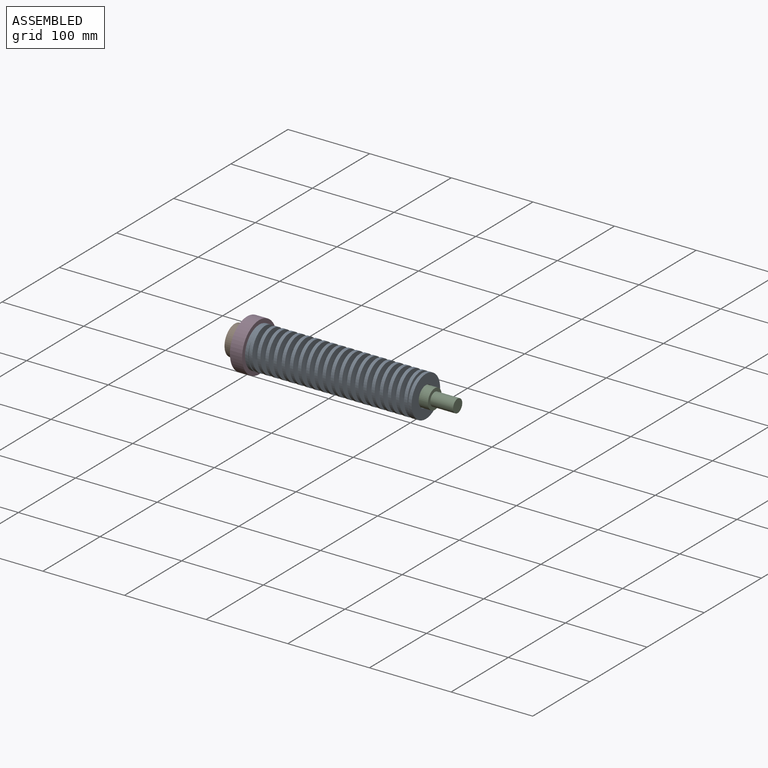
[diagram: assembled view]
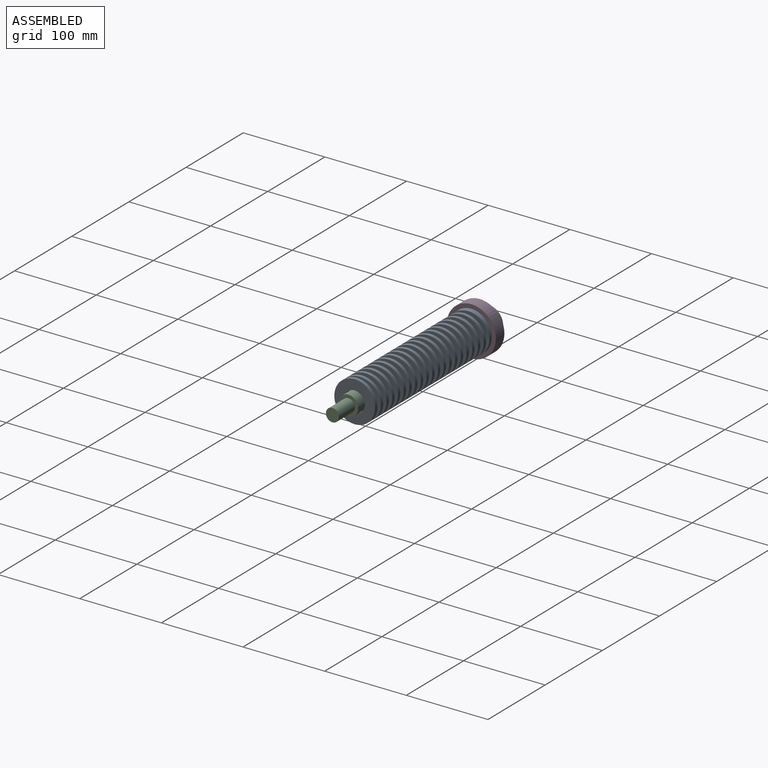
[diagram: assembled view, second angle]
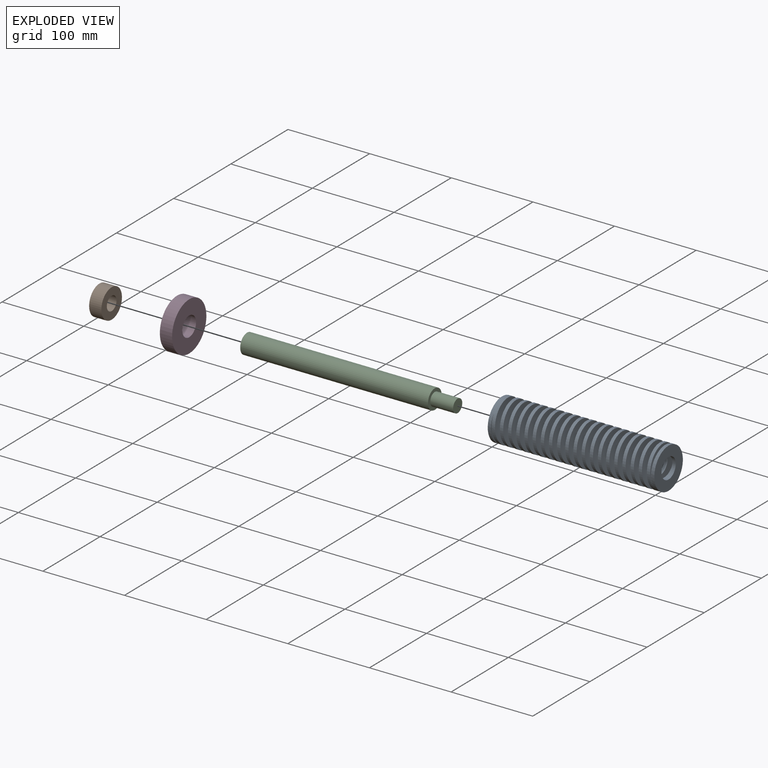
[diagram: exploded view]
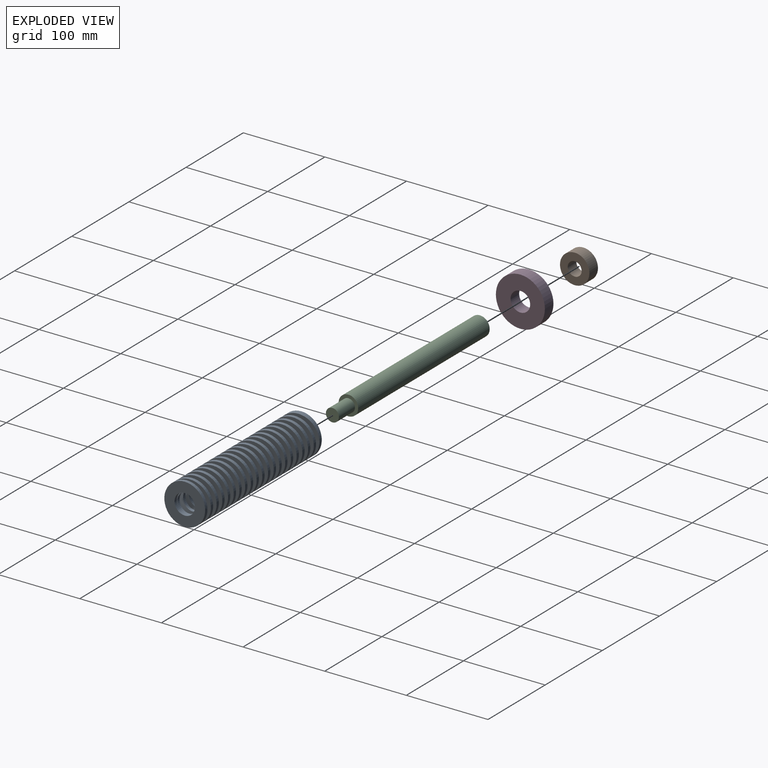
[diagram: exploded view, second angle]
ASSEMBLY  parts=4 mates=4
PART A: 46 faces, bbox 204x50x50 mm
  f0: bspline ~196.25x50mm, area 28964mm2, adj f1,f2,f3,f4,f5,f6,f7,f8
  f1: cylinder r=12.5mm len=25mm, axis (1,0,0), area 644.3mm2, adj f0,f20,f21,f44,f45
  f2: cylinder r=12.5mm len=25mm, axis (1,0,0), area 487.1mm2, adj f0,f3,f21,f42,f43
  f3: cylinder r=12.5mm len=25mm, axis (1,0,0), area 314.2mm2, adj f0,f2,f4,f21
  f4: cylinder r=12.5mm len=25mm, axis (1,0,0), area 314.1mm2, adj f0,f3,f5,f21
  f5: cylinder r=12.5mm len=25mm, axis (1,0,0), area 314.2mm2, adj f0,f4,f6,f21
  f6: cylinder r=12.5mm len=25mm, axis (1,0,0), area 314.2mm2, adj f0,f5,f7,f21
  f7: cylinder r=12.5mm len=25mm, axis (1,0,0), area 314.1mm2, adj f0,f6,f8,f21
  f8: cylinder r=12.5mm len=25mm, axis (1,0,0), area 314.2mm2, adj f0,f7,f9,f21
  f9: cylinder r=12.5mm len=25mm, axis (1,0,0), area 314.2mm2, adj f0,f8,f10,f21
  f10: cylinder r=12.5mm len=25mm, axis (1,0,0), area 314.1mm2, adj f0,f9,f11,f21
  f11: cylinder r=12.5mm len=25mm, axis (1,0,0), area 314.1mm2, adj f0,f10,f12,f21
  f12: cylinder r=12.5mm len=25mm, axis (1,0,0), area 314.2mm2, adj f0,f11,f13,f21
  f13: cylinder r=12.5mm len=25mm, axis (1,0,0), area 314.1mm2, adj f0,f12,f14,f21
  f14: cylinder r=12.5mm len=25mm, axis (1,0,0), area 314.1mm2, adj f0,f13,f15,f21
  f15: cylinder r=12.5mm len=25mm, axis (1,0,0), area 314.2mm2, adj f0,f14,f16,f21
  f16: cylinder r=12.5mm len=25mm, axis (1,0,0), area 314.2mm2, adj f0,f15,f17,f21
  f17: cylinder r=12.5mm len=25mm, axis (1,0,0), area 314.1mm2, adj f0,f16,f18,f21
  f18: cylinder r=12.5mm len=25mm, axis (1,0,0), area 314.2mm2, adj f0,f17,f19,f21
  f19: cylinder r=12.5mm len=25mm, axis (1,0,0), area 314.2mm2, adj f0,f18,f20,f21
  f20: cylinder r=12.5mm len=25mm, axis (1,0,0), area 314.1mm2, adj f0,f1,f19,f21
  f21: bspline ~196.25x50mm, area 28964.5mm2, adj f1,f2,f3,f4,f5,f6,f7,f8
  f22: cylinder r=25mm len=50mm, axis (1,0,0), area 1288.7mm2, adj f0,f21,f41,f44,f45
  f23: cylinder r=25mm len=50mm, axis (1,0,0), area 974.2mm2, adj f0,f21,f24,f42,f43
  f24: cylinder r=25mm len=50mm, axis (1,0,0), area 628.3mm2, adj f0,f21,f23,f25
  f25: cylinder r=25mm len=50mm, axis (1,0,0), area 628.2mm2, adj f0,f21,f24,f26
  f26: cylinder r=25mm len=50mm, axis (1,0,0), area 628.4mm2, adj f0,f21,f25,f27
  f27: cylinder r=25mm len=50mm, axis (1,0,0), area 628.4mm2, adj f0,f21,f26,f28
  f28: cylinder r=25mm len=50mm, axis (1,0,0), area 628.2mm2, adj f0,f21,f27,f29
  f29: cylinder r=25mm len=50mm, axis (1,0,0), area 628.3mm2, adj f0,f21,f28,f30
  f30: cylinder r=25mm len=50mm, axis (1,0,0), area 628.4mm2, adj f0,f21,f29,f31
  f31: cylinder r=25mm len=50mm, axis (1,0,0), area 628.2mm2, adj f0,f21,f30,f32
  f32: cylinder r=25mm len=50mm, axis (1,0,0), area 628.3mm2, adj f0,f21,f31,f33
  f33: cylinder r=25mm len=50mm, axis (1,0,0), area 628.4mm2, adj f0,f21,f32,f34
  f34: cylinder r=25mm len=50mm, axis (1,0,0), area 628.3mm2, adj f0,f21,f33,f35
  f35: cylinder r=25mm len=50mm, axis (1,0,0), area 628.2mm2, adj f0,f21,f34,f36
  f36: cylinder r=25mm len=50mm, axis (1,0,0), area 628.4mm2, adj f0,f21,f35,f37
  f37: cylinder r=25mm len=50mm, axis (1,0,0), area 628.4mm2, adj f0,f21,f36,f38
  f38: cylinder r=25mm len=50mm, axis (1,0,0), area 628.2mm2, adj f0,f21,f37,f39
  f39: cylinder r=25mm len=50mm, axis (1,0,0), area 628.4mm2, adj f0,f21,f38,f40
  f40: cylinder r=25mm len=50mm, axis (1,0,0), area 628.4mm2, adj f0,f21,f39,f41
  f41: cylinder r=25mm len=50mm, axis (1,0,0), area 628.2mm2, adj f0,f21,f22,f40
  f42: plane 50x50mm, normal (-1,0,0), area 1472.6mm2, adj f2,f23
  f43: plane 50x39.61mm, normal (1,0,0), area 882.6mm2, adj f0,f2,f21,f23
  f44: plane 50x39.61mm, normal (-1,0,0), area 882.6mm2, adj f0,f1,f21,f22
  f45: plane 50x50mm, normal (1,0,0), area 1472.6mm2, adj f1,f22
PART B: 4 faces, bbox 15x36x36 mm
  f0: cylinder r=8.5mm len=17mm, axis (-1,0,0), area 801.1mm2, adj f2,f3
  f1: cylinder r=18mm len=36mm, axis (-1,0,0), area 1696.5mm2, adj f2,f3
  f2: plane 36x36mm, normal (1,0,0), area 790.9mm2, adj f0,f1
  f3: plane 36x36mm, normal (-1,0,0), area 790.9mm2, adj f0,f1
PART C: 14 faces, bbox 258x24x24 mm
  f0: cylinder r=12mm len=230mm, axis (-1,0,0), area 17341.6mm2, adj f1,f2
  f1: plane 24x24mm, normal (1,0,0), area 251.3mm2, adj f0,f3
  f2: plane 24x24mm, normal (-1,0,0), area 202.1mm2, adj f0,f5,f6,f7,f8,f9,f10
  f3: cylinder r=8mm len=28mm, axis (-1,0,0), area 1407.4mm2, adj f1,f4
  f4: plane 16x16mm, normal (1,0,0), area 201.1mm2, adj f3
  f5: plane 11.51x8.5mm, normal (0,-0.5,-0.87), area 108.4mm2, adj f2,f6,f10,f13
  f6: plane 11.51x9.82mm, normal (0,-1,0), area 108.4mm2, adj f2,f5,f7,f13
  f7: plane 11.51x8.5mm, normal (0,-0.5,0.87), area 108.4mm2, adj f2,f6,f8,f13
  f8: plane 11.51x8.5mm, normal (0,0.5,0.87), area 108.4mm2, adj f2,f7,f9,f13
  f9: plane 11.51x9.82mm, normal (0,1,0), area 108.4mm2, adj f2,f8,f10,f13
  f10: plane 11.5x8.5mm, normal (0,0.5,-0.87), area 108.4mm2, adj f2,f5,f9,f13
  f11: cone r=0mm half-angle=59deg, axis (-1,0,0), area 179.6mm2, adj f12
  f12: cylinder r=7mm len=93mm, axis (-1,0,0), area 4090.4mm2, adj f11,f13
  f13: cone r=7mm half-angle=45deg, axis (-1,0,0), area 136.2mm2, adj f5,f6,f7,f8,f9,f10,f12
PART D: 4 faces, bbox 15x60x60 mm
  f0: cylinder r=12mm len=24mm, axis (-1,0,0), area 1131mm2, adj f2,f3
  f1: cylinder r=30mm len=60mm, axis (-1,0,0), area 2827.4mm2, adj f2,f3
  f2: plane 60x60mm, normal (1,0,0), area 2375mm2, adj f0,f1
  f3: plane 60x60mm, normal (-1,0,0), area 2375mm2, adj f0,f1
PLACE A t=(15,0,0)mm
PLACE B t=(-15,0,0)mm
PLACE C at identity fixed
PLACE D at identity
MATE fastened C.f0 <-> D.f0  axis (-1,0,0) through (0,0,0)mm
MATE planar A.f1 <-> D.f1  axis (-1,0,0) through (15,0,0)mm
MATE fastened B.f0 <-> C.f0  axis (1,0,0) through (0,0,0)mm
MATE cylindrical A.f1 <-> C.f0  axis (1,0,0) through (117,0,0)mm
